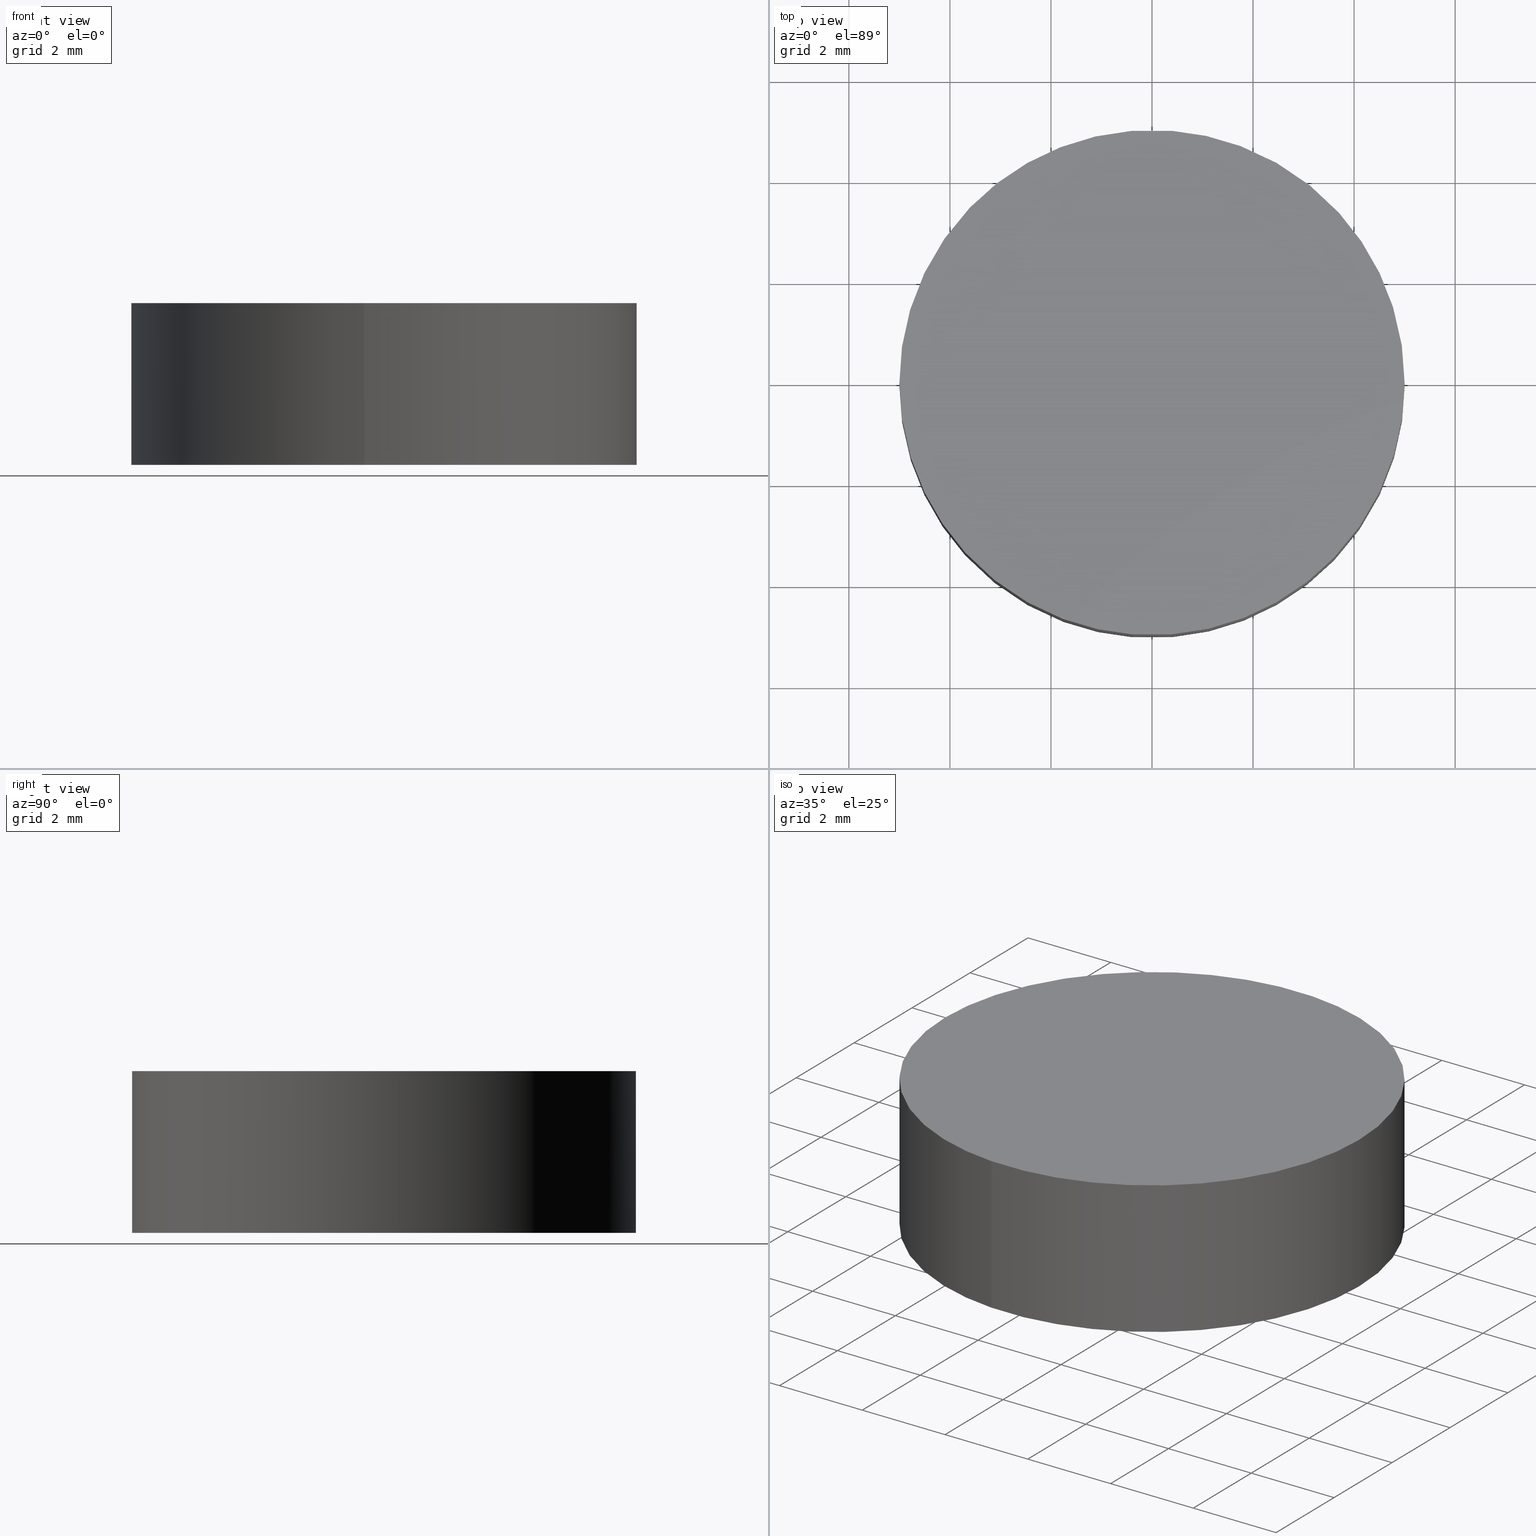
[diagram: canonical four-view strip — front | top / right | iso, engineering-drawing reading convention]
A machine part, canonical four-view strip (front | top / right | iso — engineering-drawing reading convention). The complete STEP part file that produces these views, byte-faithful:
ISO-10303-21;
HEADER;
/****************************************************************
 * Generated by software with PDE/Lib inside                    *
 * PDElib Version 4.4.1-0003, patched  Thursday August 19 11:58 *
 * International Technegroup Inc. (www.iti-oh.com)              *
 ****************************************************************/
FILE_DESCRIPTION((''),'2;1');
FILE_NAME('','2005-12-14T16:10:34',(''),(''),'','CADfix','');
FILE_SCHEMA(('AUTOMOTIVE_DESIGN'));
ENDSEC;
DATA;
#5=APPLICATION_CONTEXT('automotive design');
#6=APPLICATION_PROTOCOL_DEFINITION('Draft International Standard','automotive_design',1998,#5);
#7=PRODUCT_CONTEXT('None',#5,'mechanical');
#8=PRODUCT('rubber foot','','None',(#7));
#9=PRODUCT_RELATED_PRODUCT_CATEGORY('part','description',(#8));
#10=PRODUCT_DEFINITION_FORMATION('None','None',#8);
#11=PRODUCT_DEFINITION_CONTEXT('part definition',#5,'design');
#12=PRODUCT_DEFINITION('None','None',#10,#11);
#18=(NAMED_UNIT(*)PLANE_ANGLE_UNIT()SI_UNIT($,.RADIAN.));
#19=DIMENSIONAL_EXPONENTS(0.0,0.0,0.0,0.0,0.0,0.0,0.0);
#20=PLANE_ANGLE_MEASURE_WITH_UNIT(PLANE_ANGLE_MEASURE(0.017453292500000),#18);
#24=(CONVERSION_BASED_UNIT('DEGREE',#20)NAMED_UNIT(#19)PLANE_ANGLE_UNIT());
#28=(NAMED_UNIT(*)SI_UNIT($,.STERADIAN.)SOLID_ANGLE_UNIT());
#32=(LENGTH_UNIT()NAMED_UNIT(*)SI_UNIT(.MILLI.,.METRE.));
#34=UNCERTAINTY_MEASURE_WITH_UNIT(LENGTH_MEASURE(0.001000000000000),#32,'DISTANCE_ACCURACY_VALUE','');
#36=(GEOMETRIC_REPRESENTATION_CONTEXT(3)GLOBAL_UNCERTAINTY_ASSIGNED_CONTEXT((#34))GLOBAL_UNIT_ASSIGNED_CONTEXT((#24,#28,#32))REPRESENTATION_CONTEXT('None','None'));
#37=AXIS2_PLACEMENT_3D('',#38,#39,#40);
#38=CARTESIAN_POINT('',(0.0,0.0,0.0));
#39=DIRECTION('',(0.0,0.0,1.0));
#40=DIRECTION('',(1.0,0.0,0.0));
#41=ADVANCED_BREP_SHAPE_REPRESENTATION('',(#37,#251),#36);
#42=PRODUCT_DEFINITION_SHAPE('','',#12);
#43=SHAPE_DEFINITION_REPRESENTATION(#42,#41);
#44=CARTESIAN_POINT('',(-0.392295478639228,-4.984586668665638,3.280000000000001));
#45=CARTESIAN_POINT('',(-5.376882147304866,-4.592291190026410,3.280000000000001));
#46=CARTESIAN_POINT('',(-4.984586668665638,0.392295478639228,3.280000000000001));
#47=CARTESIAN_POINT('',(-4.592291190026410,5.376882147304866,3.280000000000001));
#48=CARTESIAN_POINT('',(0.392295478639228,4.984586668665638,3.280000000000001));
#49=CARTESIAN_POINT('',(-0.392295478639228,-4.984586668665638,-0.082000000000000));
#50=CARTESIAN_POINT('',(-5.376882147304866,-4.592291190026410,-0.082000000000000));
#51=CARTESIAN_POINT('',(-4.984586668665638,0.392295478639228,-0.082000000000000));
#52=CARTESIAN_POINT('',(-4.592291190026410,5.376882147304866,-0.082000000000000));
#53=CARTESIAN_POINT('',(0.392295478639228,4.984586668665638,-0.082000000000000));
#61=(BOUNDED_SURFACE()B_SPLINE_SURFACE(2,1,((#44,#49),(#45,#50),(#46,#51),(#47,#52),(#48,#53)),.UNSPECIFIED.,.F.,.F.,.U.)B_SPLINE_SURFACE_WITH_KNOTS((3,2,3),(2,2),(0.0,8.284271247461899,16.568542494923800),(0.0,3.362000000000001),.UNSPECIFIED.)GEOMETRIC_REPRESENTATION_ITEM()RATIONAL_B_SPLINE_SURFACE(((1.0,1.0),(0.707106781186548,0.707106781186548),(1.0,1.0),(0.707106781186548,0.707106781186548),(1.0,1.0)))REPRESENTATION_ITEM('')SURFACE());
#62=CARTESIAN_POINT('',(-5.0,0.0,0.0));
#63=VERTEX_POINT('',#62);
#64=CARTESIAN_POINT('',(-0.392292576094108,-4.984586897099193,8.298917E-015));
#65=VERTEX_POINT('',#64);
#66=CARTESIAN_POINT('',(-5.0,0.0,0.0));
#67=CARTESIAN_POINT('',(-5.000000000000001,-4.621955157995664,0.0));
#68=CARTESIAN_POINT('',(-0.392292576094108,-4.984586897099193,8.298917E-015));
#76=(BOUNDED_CURVE()B_SPLINE_CURVE(2,(#66,#67,#68),.UNSPECIFIED.,.F.,.U.)B_SPLINE_CURVE_WITH_KNOTS((3,3),(0.0,0.236331400453952),.UNSPECIFIED.)CURVE()GEOMETRIC_REPRESENTATION_ITEM()RATIONAL_B_SPLINE_CURVE((1.0,0.723120541657404,0.969723564491107))REPRESENTATION_ITEM(''));
#77=EDGE_CURVE('',#63,#65,#76,.T.);
#78=ORIENTED_EDGE('',*,*,#77,.T.);
#79=CARTESIAN_POINT('',(-0.392292611890152,-4.984586894282025,3.200000000000000));
#80=VERTEX_POINT('',#79);
#81=CARTESIAN_POINT('',(-0.392292611890152,-4.984586894282025,3.200000000000000));
#82=CARTESIAN_POINT('',(-0.392292576094108,-4.984586897099193,8.298917E-015));
#83=QUASI_UNIFORM_CURVE('',1,(#81,#82),.UNSPECIFIED.,.F.,.U.);
#84=EDGE_CURVE('',#80,#65,#83,.T.);
#85=ORIENTED_EDGE('',*,*,#84,.F.);
#86=CARTESIAN_POINT('',(-5.0,0.0,3.200000000000000));
#87=VERTEX_POINT('',#86);
#88=CARTESIAN_POINT('',(-5.0,0.0,3.200000000000000));
#89=CARTESIAN_POINT('',(-4.999999999999999,-4.621955124701170,3.200000000000000));
#90=CARTESIAN_POINT('',(-0.392292611890152,-4.984586894282026,3.200000000000000));
#98=(BOUNDED_CURVE()B_SPLINE_CURVE(2,(#88,#89,#90),.UNSPECIFIED.,.F.,.U.)B_SPLINE_CURVE_WITH_KNOTS((3,3),(0.0,0.236331399222893),.UNSPECIFIED.)CURVE()GEOMETRIC_REPRESENTATION_ITEM()RATIONAL_B_SPLINE_CURVE((1.0,0.723120543099679,0.969723561921979))REPRESENTATION_ITEM(''));
#99=EDGE_CURVE('',#87,#80,#98,.T.);
#100=ORIENTED_EDGE('',*,*,#99,.F.);
#101=CARTESIAN_POINT('',(0.392292611890152,4.984586894282025,3.200000000000000));
#102=VERTEX_POINT('',#101);
#103=CARTESIAN_POINT('',(0.392292611890152,4.984586894282025,3.200000000000001));
#104=CARTESIAN_POINT('',(0.196449095012054,5.0,3.200000000000000));
#105=CARTESIAN_POINT('',(0.0,5.0,3.200000000000000));
#106=CARTESIAN_POINT('',(-5.000000000000001,5.000000000000001,3.200000000000000));
#107=CARTESIAN_POINT('',(-5.0,0.0,3.200000000000000));
#115=(BOUNDED_CURVE()B_SPLINE_CURVE(2,(#103,#104,#105,#106,#107),.UNSPECIFIED.,.F.,.U.)B_SPLINE_CURVE_WITH_KNOTS((3,2,3),(0.736331399222893,0.750000000000000,1.0),.UNSPECIFIED.)CURVE()GEOMETRIC_REPRESENTATION_ITEM()RATIONAL_B_SPLINE_CURVE((0.969723561921979,0.983986238086868,1.0,0.707106781186548,1.0))REPRESENTATION_ITEM(''));
#116=EDGE_CURVE('',#102,#87,#115,.T.);
#117=ORIENTED_EDGE('',*,*,#116,.F.);
#118=CARTESIAN_POINT('',(0.392292576094107,4.984586897099193,8.298917E-015));
#119=VERTEX_POINT('',#118);
#120=CARTESIAN_POINT('',(0.392292611890152,4.984586894282025,3.200000000000000));
#121=CARTESIAN_POINT('',(0.392292576094107,4.984586897099193,8.298917E-015));
#122=QUASI_UNIFORM_CURVE('',1,(#120,#121),.UNSPECIFIED.,.F.,.U.);
#123=EDGE_CURVE('',#102,#119,#122,.T.);
#124=ORIENTED_EDGE('',*,*,#123,.T.);
#125=CARTESIAN_POINT('',(0.392292576094107,4.984586897099193,8.298917E-015));
#126=CARTESIAN_POINT('',(0.196449077030975,5.000000000000001,0.0));
#127=CARTESIAN_POINT('',(0.0,5.0,0.0));
#128=CARTESIAN_POINT('',(-5.000000000000001,5.000000000000001,0.0));
#129=CARTESIAN_POINT('',(-5.0,0.0,0.0));
#137=(BOUNDED_CURVE()B_SPLINE_CURVE(2,(#125,#126,#127,#128,#129),.UNSPECIFIED.,.F.,.U.)B_SPLINE_CURVE_WITH_KNOTS((3,2,3),(0.736331400453952,0.750000000000000,1.0),.UNSPECIFIED.)CURVE()GEOMETRIC_REPRESENTATION_ITEM()RATIONAL_B_SPLINE_CURVE((0.969723564491107,0.983986239529143,1.0,0.707106781186548,1.0))REPRESENTATION_ITEM(''));
#138=EDGE_CURVE('',#119,#63,#137,.T.);
#139=ORIENTED_EDGE('',*,*,#138,.T.);
#140=EDGE_LOOP('',(#78,#85,#100,#117,#124,#139));
#141=FACE_OUTER_BOUND('',#140,.T.);
#142=ADVANCED_FACE('',(#141),#61,.T.);
#143=CARTESIAN_POINT('',(0.392295478639228,4.984586668665638,3.280000000000001));
#144=CARTESIAN_POINT('',(5.376882147304866,4.592291190026410,3.280000000000001));
#145=CARTESIAN_POINT('',(4.984586668665638,-0.392295478639228,3.280000000000001));
#146=CARTESIAN_POINT('',(4.592291190026410,-5.376882147304866,3.280000000000001));
#147=CARTESIAN_POINT('',(-0.392295478639228,-4.984586668665638,3.280000000000001));
#148=CARTESIAN_POINT('',(0.392295478639228,4.984586668665638,-0.082000000000000));
#149=CARTESIAN_POINT('',(5.376882147304866,4.592291190026410,-0.082000000000000));
#150=CARTESIAN_POINT('',(4.984586668665638,-0.392295478639228,-0.082000000000000));
#151=CARTESIAN_POINT('',(4.592291190026410,-5.376882147304866,-0.082000000000000));
#152=CARTESIAN_POINT('',(-0.392295478639228,-4.984586668665638,-0.082000000000000));
#160=(BOUNDED_SURFACE()B_SPLINE_SURFACE(2,1,((#143,#148),(#144,#149),(#145,#150),(#146,#151),(#147,#152)),.UNSPECIFIED.,.F.,.F.,.U.)B_SPLINE_SURFACE_WITH_KNOTS((3,2,3),(2,2),(0.0,8.284271247461899,16.568542494923800),(0.0,3.362000000000001),.UNSPECIFIED.)GEOMETRIC_REPRESENTATION_ITEM()RATIONAL_B_SPLINE_SURFACE(((1.0,1.0),(0.707106781186548,0.707106781186548),(1.0,1.0),(0.707106781186548,0.707106781186548),(1.0,1.0)))REPRESENTATION_ITEM('')SURFACE());
#161=CARTESIAN_POINT('',(5.0,0.0,0.0));
#162=VERTEX_POINT('',#161);
#163=CARTESIAN_POINT('',(-0.392292576094108,-4.984586897099193,8.298917E-015));
#164=CARTESIAN_POINT('',(-0.196449077030975,-5.000000000000001,0.0));
#165=CARTESIAN_POINT('',(0.0,-5.0,0.0));
#166=CARTESIAN_POINT('',(5.000000000000001,-5.000000000000001,0.0));
#167=CARTESIAN_POINT('',(5.0,0.0,0.0));
#175=(BOUNDED_CURVE()B_SPLINE_CURVE(2,(#163,#164,#165,#166,#167),.UNSPECIFIED.,.F.,.U.)B_SPLINE_CURVE_WITH_KNOTS((3,2,3),(0.236331400453952,0.250000000000000,0.500000000000000),.UNSPECIFIED.)CURVE()GEOMETRIC_REPRESENTATION_ITEM()RATIONAL_B_SPLINE_CURVE((0.969723564491107,0.983986239529143,1.0,0.707106781186548,1.0))REPRESENTATION_ITEM(''));
#176=EDGE_CURVE('',#65,#162,#175,.T.);
#177=ORIENTED_EDGE('',*,*,#176,.T.);
#178=CARTESIAN_POINT('',(5.0,0.0,0.0));
#179=CARTESIAN_POINT('',(5.000000000000001,4.621955157995664,0.0));
#180=CARTESIAN_POINT('',(0.392292576094107,4.984586897099193,8.298917E-015));
#188=(BOUNDED_CURVE()B_SPLINE_CURVE(2,(#178,#179,#180),.UNSPECIFIED.,.F.,.U.)B_SPLINE_CURVE_WITH_KNOTS((3,3),(0.500000000000000,0.736331400453952),.UNSPECIFIED.)CURVE()GEOMETRIC_REPRESENTATION_ITEM()RATIONAL_B_SPLINE_CURVE((1.0,0.723120541657404,0.969723564491107))REPRESENTATION_ITEM(''));
#189=EDGE_CURVE('',#162,#119,#188,.T.);
#190=ORIENTED_EDGE('',*,*,#189,.T.);
#191=ORIENTED_EDGE('',*,*,#123,.F.);
#192=CARTESIAN_POINT('',(5.0,0.0,3.200000000000000));
#193=VERTEX_POINT('',#192);
#194=CARTESIAN_POINT('',(5.0,0.0,3.200000000000000));
#195=CARTESIAN_POINT('',(5.0,4.621955124701172,3.200000000000000));
#196=CARTESIAN_POINT('',(0.392292611890152,4.984586894282025,3.200000000000001));
#204=(BOUNDED_CURVE()B_SPLINE_CURVE(2,(#194,#195,#196),.UNSPECIFIED.,.F.,.U.)B_SPLINE_CURVE_WITH_KNOTS((3,3),(0.500000000000000,0.736331399222893),.UNSPECIFIED.)CURVE()GEOMETRIC_REPRESENTATION_ITEM()RATIONAL_B_SPLINE_CURVE((1.0,0.723120543099679,0.969723561921979))REPRESENTATION_ITEM(''));
#205=EDGE_CURVE('',#193,#102,#204,.T.);
#206=ORIENTED_EDGE('',*,*,#205,.F.);
#207=CARTESIAN_POINT('',(-0.392292611890152,-4.984586894282025,3.200000000000001));
#208=CARTESIAN_POINT('',(-0.196449095012054,-5.0,3.200000000000000));
#209=CARTESIAN_POINT('',(0.0,-5.0,3.200000000000000));
#210=CARTESIAN_POINT('',(5.000000000000001,-5.000000000000001,3.200000000000000));
#211=CARTESIAN_POINT('',(5.0,0.0,3.200000000000000));
#219=(BOUNDED_CURVE()B_SPLINE_CURVE(2,(#207,#208,#209,#210,#211),.UNSPECIFIED.,.F.,.U.)B_SPLINE_CURVE_WITH_KNOTS((3,2,3),(0.236331399222893,0.250000000000000,0.500000000000000),.UNSPECIFIED.)CURVE()GEOMETRIC_REPRESENTATION_ITEM()RATIONAL_B_SPLINE_CURVE((0.969723561921979,0.983986238086868,1.0,0.707106781186548,1.0))REPRESENTATION_ITEM(''));
#220=EDGE_CURVE('',#80,#193,#219,.T.);
#221=ORIENTED_EDGE('',*,*,#220,.F.);
#222=ORIENTED_EDGE('',*,*,#84,.T.);
#223=EDGE_LOOP('',(#177,#190,#191,#206,#221,#222));
#224=FACE_OUTER_BOUND('',#223,.T.);
#225=ADVANCED_FACE('',(#224),#160,.T.);
#226=CARTESIAN_POINT('',(-5.499499980618060,5.497973763634265,0.0));
#227=CARTESIAN_POINT('',(5.499500248838961,5.497973763634265,0.0));
#228=CARTESIAN_POINT('',(-5.499499980618060,-5.497974031855167,0.0));
#229=CARTESIAN_POINT('',(5.499500248838961,-5.497974031855167,0.0));
#230=B_SPLINE_SURFACE_WITH_KNOTS('',1,1,((#226,#228),(#227,#229)),.UNSPECIFIED.,.F.,.F.,.U.,(2,2),(2,2),(0.0,10.999000229457019),(0.0,10.995947795489430),.UNSPECIFIED.);
#231=ORIENTED_EDGE('',*,*,#138,.F.);
#232=ORIENTED_EDGE('',*,*,#189,.F.);
#233=ORIENTED_EDGE('',*,*,#176,.F.);
#234=ORIENTED_EDGE('',*,*,#77,.F.);
#235=EDGE_LOOP('',(#231,#232,#233,#234));
#236=FACE_OUTER_BOUND('',#235,.T.);
#237=ADVANCED_FACE('',(#236),#230,.T.);
#238=CARTESIAN_POINT('',(-5.499499980618060,5.497973763634265,3.200000000000000));
#239=CARTESIAN_POINT('',(5.499500248838961,5.497973763634265,3.200000000000000));
#240=CARTESIAN_POINT('',(-5.499499980618060,-5.497974031855167,3.200000000000000));
#241=CARTESIAN_POINT('',(5.499500248838961,-5.497974031855167,3.200000000000000));
#242=B_SPLINE_SURFACE_WITH_KNOTS('',1,1,((#238,#240),(#239,#241)),.UNSPECIFIED.,.F.,.F.,.U.,(2,2),(2,2),(0.0,10.999000229457019),(0.0,10.995947795489430),.UNSPECIFIED.);
#243=ORIENTED_EDGE('',*,*,#99,.T.);
#244=ORIENTED_EDGE('',*,*,#220,.T.);
#245=ORIENTED_EDGE('',*,*,#205,.T.);
#246=ORIENTED_EDGE('',*,*,#116,.T.);
#247=EDGE_LOOP('',(#243,#244,#245,#246));
#248=FACE_OUTER_BOUND('',#247,.T.);
#249=ADVANCED_FACE('',(#248),#242,.F.);
#250=CLOSED_SHELL('',(#142,#225,#237,#249));
#251=MANIFOLD_SOLID_BREP('rubber foot',#250);
#257=(NAMED_UNIT(*)PLANE_ANGLE_UNIT()SI_UNIT($,.RADIAN.));
#258=DIMENSIONAL_EXPONENTS(0.0,0.0,0.0,0.0,0.0,0.0,0.0);
#259=PLANE_ANGLE_MEASURE_WITH_UNIT(PLANE_ANGLE_MEASURE(0.017453292500000),#257);
#263=(CONVERSION_BASED_UNIT('DEGREE',#259)NAMED_UNIT(#258)PLANE_ANGLE_UNIT());
#267=(NAMED_UNIT(*)SI_UNIT($,.STERADIAN.)SOLID_ANGLE_UNIT());
#271=(LENGTH_UNIT()NAMED_UNIT(*)SI_UNIT(.MILLI.,.METRE.));
#273=UNCERTAINTY_MEASURE_WITH_UNIT(LENGTH_MEASURE(0.001000000000000),#271,'DISTANCE_ACCURACY_VALUE','');
#275=(GEOMETRIC_REPRESENTATION_CONTEXT(3)GLOBAL_UNCERTAINTY_ASSIGNED_CONTEXT((#273))GLOBAL_UNIT_ASSIGNED_CONTEXT((#263,#267,#271))REPRESENTATION_CONTEXT('','3D'));
ENDSEC;
END-ISO-10303-21;
